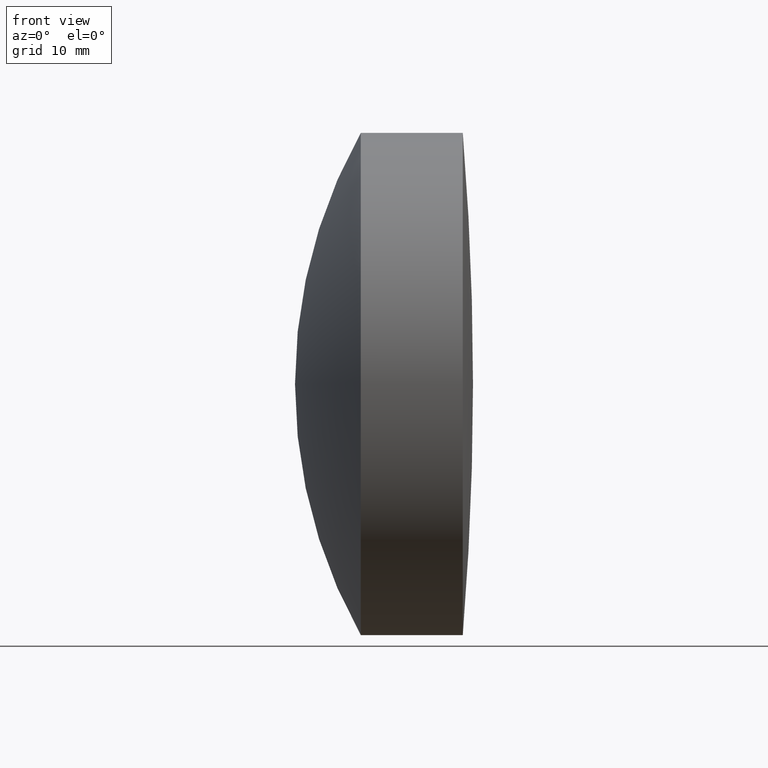
[diagram: clean part render]
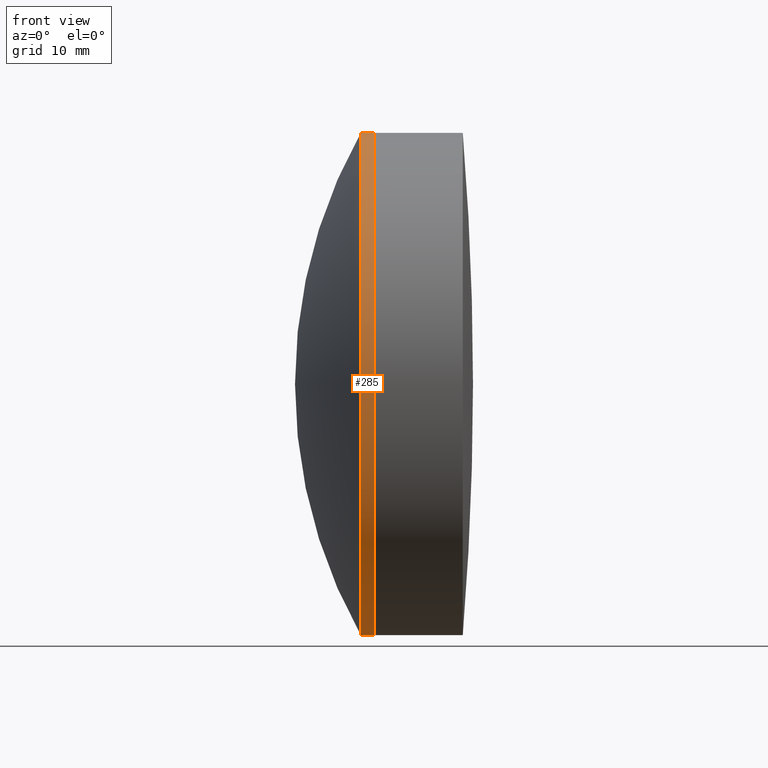
[diagram: same view with one face highlighted and labeled with its STEP entity id]
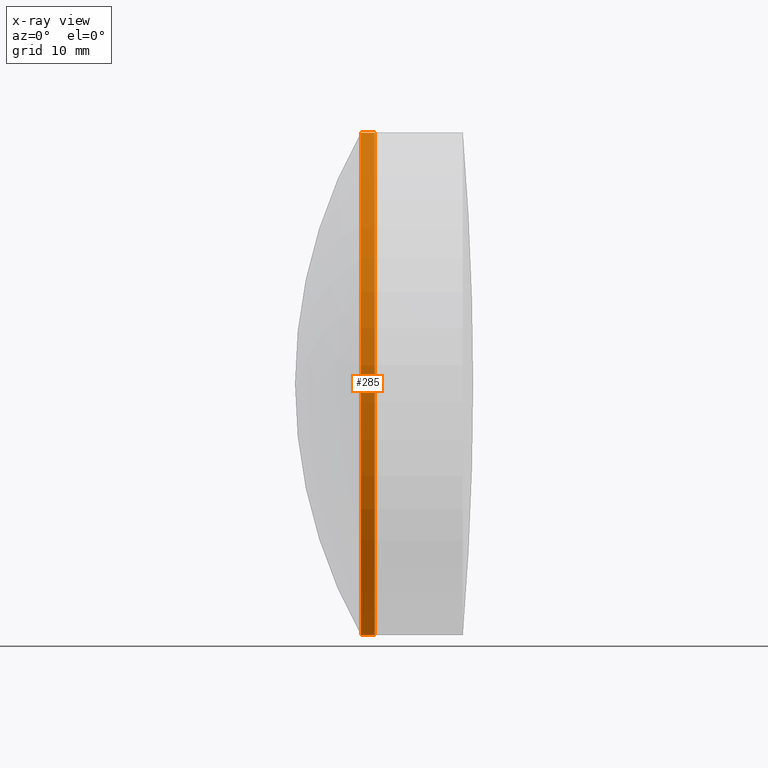
[diagram: x-ray of the same camera — body ghosted, the highlighted face saturated]
A machine part, front view. The second image highlights one B-rep face of the part: STEP entity #285.
The next image is the same camera in x-ray: the body ghosted, the highlighted face saturated — about 0% of this face is hidden behind the body in this view.
In plain terms, the highlighted cylindrical surface (partial cylindrical patch) has radius 25.4 mm, axis along (-1, -0, -0).
Its self-contained STEP definition (entity closure, byte-faithful):
#19 = CARTESIAN_POINT ( 'NONE',  ( 522.8190420686033800, 0.0000000000000000000, 25.39999999999999100 ) ) ;
#31 = VERTEX_POINT ( 'NONE', #19 ) ;
#45 = DIRECTION ( 'NONE',  ( -1.000000000000000000, -0.0000000000000000000, -0.0000000000000000000 ) ) ;
#55 = DIRECTION ( 'NONE',  ( -1.000000000000000000, -0.0000000000000000000, -0.0000000000000000000 ) ) ;
#83 = DIRECTION ( 'NONE',  ( -1.000000000000000000, -0.0000000000000000000, -0.0000000000000000000 ) ) ;
#89 = EDGE_CURVE ( 'NONE', #222, #31, #157, .T. ) ;
#101 = CARTESIAN_POINT ( 'NONE',  ( 521.4133371071388900, 0.0000000000000000000, 0.0000000000000000000 ) ) ;
#106 = ORIENTED_EDGE ( 'NONE', *, *, #89, .T. ) ;
#115 = VERTEX_POINT ( 'NONE', #347 ) ;
#142 = CARTESIAN_POINT ( 'NONE',  ( 522.8190420686033800, 0.0000000000000000000, 0.0000000000000000000 ) ) ;
#143 = DIRECTION ( 'NONE',  ( -1.000000000000000000, -0.0000000000000000000, -0.0000000000000000000 ) ) ;
#154 = AXIS2_PLACEMENT_3D ( 'NONE', #101, #55, #293 ) ;
#157 = CIRCLE ( 'NONE', #227, 25.39999999999999100 ) ;
#168 = CYLINDRICAL_SURFACE ( 'NONE', #298, 25.39999999999999100 ) ;
#182 = ORIENTED_EDGE ( 'NONE', *, *, #274, .T. ) ;
#189 = CARTESIAN_POINT ( 'NONE',  ( 124.5233095260452400, 3.110602869834276100E-015, -25.39999999999999100 ) ) ;
#197 = DIRECTION ( 'NONE',  ( 0.0000000000000000000, 0.0000000000000000000, 1.000000000000000000 ) ) ;
#203 = DIRECTION ( 'NONE',  ( -1.000000000000000000, -0.0000000000000000000, -0.0000000000000000000 ) ) ;
#207 = VECTOR ( 'NONE', #83, 1000.000000000000000 ) ;
#213 = EDGE_CURVE ( 'NONE', #222, #115, #275, .T. ) ;
#219 = CARTESIAN_POINT ( 'NONE',  ( 521.4133371071388900, 0.0000000000000000000, 25.39999999999999100 ) ) ;
#222 = VERTEX_POINT ( 'NONE', #244 ) ;
#227 = AXIS2_PLACEMENT_3D ( 'NONE', #142, #45, #250 ) ;
#228 = VECTOR ( 'NONE', #143, 1000.000000000000000 ) ;
#235 = FACE_OUTER_BOUND ( 'NONE', #296, .T. ) ;
#243 = EDGE_CURVE ( 'NONE', #115, #282, #313, .T. ) ;
#244 = CARTESIAN_POINT ( 'NONE',  ( 522.8190420686033800, 3.110602869834276100E-015, -25.39999999999999100 ) ) ;
#247 = LINE ( 'NONE', #253, #228 ) ;
#250 = DIRECTION ( 'NONE',  ( 0.0000000000000000000, 0.0000000000000000000, 1.000000000000000000 ) ) ;
#253 = CARTESIAN_POINT ( 'NONE',  ( 124.5233095260452400, 0.0000000000000000000, 25.39999999999999100 ) ) ;
#274 = EDGE_CURVE ( 'NONE', #31, #282, #247, .T. ) ;
#275 = LINE ( 'NONE', #189, #207 ) ;
#282 = VERTEX_POINT ( 'NONE', #219 ) ;
#285 = ADVANCED_FACE ( 'NONE', ( #235 ), #168, .T. ) ;
#290 = ORIENTED_EDGE ( 'NONE', *, *, #243, .F. ) ;
#293 = DIRECTION ( 'NONE',  ( 0.0000000000000000000, 0.0000000000000000000, 1.000000000000000000 ) ) ;
#296 = EDGE_LOOP ( 'NONE', ( #319, #106, #182, #290 ) ) ;
#298 = AXIS2_PLACEMENT_3D ( 'NONE', #338, #203, #197 ) ;
#313 = CIRCLE ( 'NONE', #154, 25.39999999999999100 ) ;
#319 = ORIENTED_EDGE ( 'NONE', *, *, #213, .F. ) ;
#338 = CARTESIAN_POINT ( 'NONE',  ( 124.5233095260452400, 0.0000000000000000000, 0.0000000000000000000 ) ) ;
#347 = CARTESIAN_POINT ( 'NONE',  ( 521.4133371071388900, 3.110602869834276500E-015, -25.39999999999999900 ) ) ;